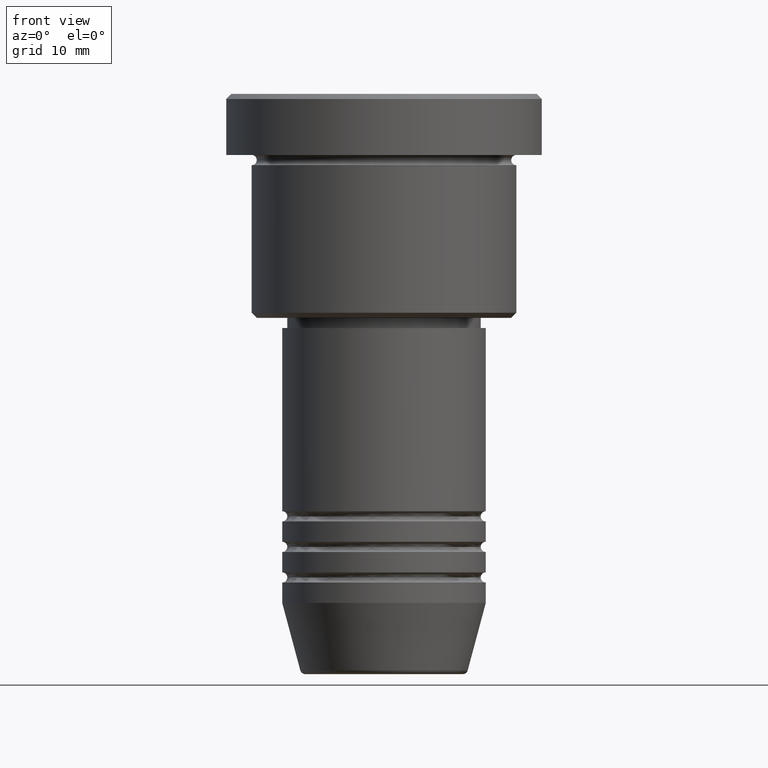
[diagram: clean part render]
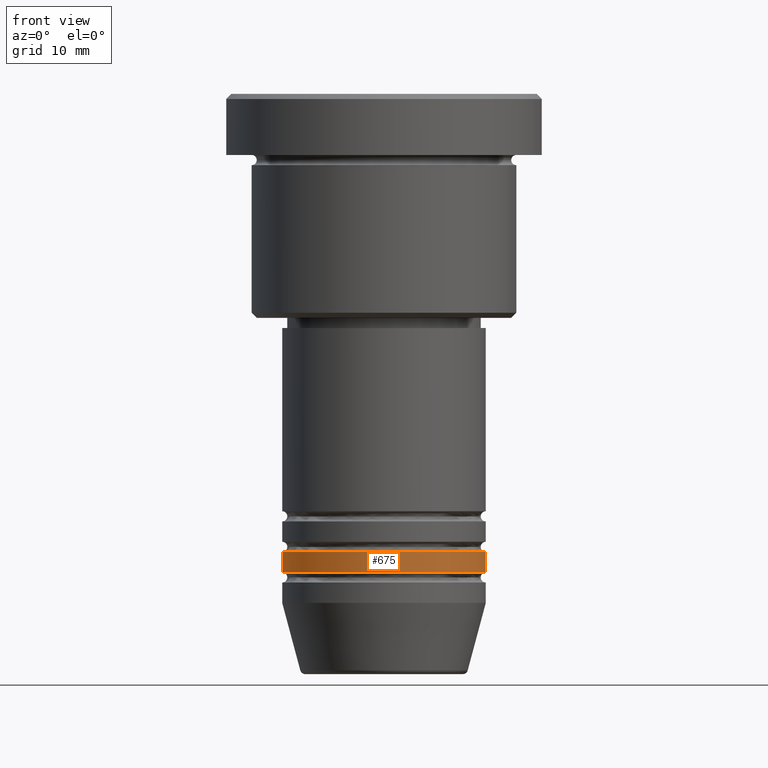
[diagram: same view with one face highlighted and labeled with its STEP entity id]
A machine part, front view. The second image highlights one B-rep face of the part: STEP entity #675.
In plain terms, the highlighted cylindrical surface (partial cylindrical patch) has radius 10 mm, axis along (-0, -0, 1).
Its self-contained STEP definition (entity closure, byte-faithful):
#8 = DIRECTION ( 'NONE',  ( 1.000000000000000000, 0.000000000000000000, 0.000000000000000000 ) ) ;
#20 = CARTESIAN_POINT ( 'NONE',  ( -10.00000000000000000, 1.224646799147353256E-15, -46.99999999999998579 ) ) ;
#43 = EDGE_CURVE ( 'NONE', #513, #990, #479, .T. ) ;
#154 = CYLINDRICAL_SURFACE ( 'NONE', #464, 10.00000000000000000 ) ;
#176 = CARTESIAN_POINT ( 'NONE',  ( 0.000000000000000000, 0.000000000000000000, -46.99999999999998579 ) ) ;
#178 = DIRECTION ( 'NONE',  ( -0.000000000000000000, -0.000000000000000000, 1.000000000000000000 ) ) ;
#206 = VERTEX_POINT ( 'NONE', #298 ) ;
#263 = LINE ( 'NONE', #719, #750 ) ;
#298 = CARTESIAN_POINT ( 'NONE',  ( 10.00000000000000000, 0.000000000000000000, -44.99999999999998579 ) ) ;
#359 = ORIENTED_EDGE ( 'NONE', *, *, #642, .F. ) ;
#374 = CARTESIAN_POINT ( 'NONE',  ( 10.00000000000000000, 0.000000000000000000, 0.000000000000000000 ) ) ;
#399 = ORIENTED_EDGE ( 'NONE', *, *, #753, .F. ) ;
#443 = DIRECTION ( 'NONE',  ( -0.000000000000000000, -0.000000000000000000, 1.000000000000000000 ) ) ;
#464 = AXIS2_PLACEMENT_3D ( 'NONE', #1057, #878, #1161 ) ;
#479 = CIRCLE ( 'NONE', #1048, 10.00000000000000000 ) ;
#513 = VERTEX_POINT ( 'NONE', #20 ) ;
#528 = VERTEX_POINT ( 'NONE', #947 ) ;
#554 = LINE ( 'NONE', #374, #960 ) ;
#642 = EDGE_CURVE ( 'NONE', #528, #206, #1111, .T. ) ;
#644 = DIRECTION ( 'NONE',  ( -0.000000000000000000, -0.000000000000000000, 1.000000000000000000 ) ) ;
#675 = ADVANCED_FACE ( 'NONE', ( #696 ), #154, .T. ) ;
#682 = EDGE_CURVE ( 'NONE', #990, #206, #554, .T. ) ;
#696 = FACE_OUTER_BOUND ( 'NONE', #835, .T. ) ;
#719 = CARTESIAN_POINT ( 'NONE',  ( -10.00000000000000000, 1.224646799147353256E-15, 0.000000000000000000 ) ) ;
#750 = VECTOR ( 'NONE', #644, 1000.000000000000000 ) ;
#753 = EDGE_CURVE ( 'NONE', #513, #528, #263, .T. ) ;
#754 = ORIENTED_EDGE ( 'NONE', *, *, #682, .T. ) ;
#835 = EDGE_LOOP ( 'NONE', ( #399, #950, #754, #359 ) ) ;
#878 = DIRECTION ( 'NONE',  ( -0.000000000000000000, -0.000000000000000000, 1.000000000000000000 ) ) ;
#947 = CARTESIAN_POINT ( 'NONE',  ( -10.00000000000000000, 1.224646799147353256E-15, -44.99999999999998579 ) ) ;
#950 = ORIENTED_EDGE ( 'NONE', *, *, #43, .T. ) ;
#960 = VECTOR ( 'NONE', #178, 1000.000000000000000 ) ;
#964 = DIRECTION ( 'NONE',  ( 1.000000000000000000, 0.000000000000000000, 0.000000000000000000 ) ) ;
#971 = CARTESIAN_POINT ( 'NONE',  ( 0.000000000000000000, 0.000000000000000000, -44.99999999999998579 ) ) ;
#980 = AXIS2_PLACEMENT_3D ( 'NONE', #971, #443, #964 ) ;
#990 = VERTEX_POINT ( 'NONE', #1077 ) ;
#1048 = AXIS2_PLACEMENT_3D ( 'NONE', #176, #1072, #8 ) ;
#1057 = CARTESIAN_POINT ( 'NONE',  ( 0.000000000000000000, 0.000000000000000000, 0.000000000000000000 ) ) ;
#1072 = DIRECTION ( 'NONE',  ( -0.000000000000000000, -0.000000000000000000, 1.000000000000000000 ) ) ;
#1077 = CARTESIAN_POINT ( 'NONE',  ( 10.00000000000000000, 0.000000000000000000, -46.99999999999998579 ) ) ;
#1111 = CIRCLE ( 'NONE', #980, 10.00000000000000000 ) ;
#1161 = DIRECTION ( 'NONE',  ( 1.000000000000000000, 0.000000000000000000, 0.000000000000000000 ) ) ;